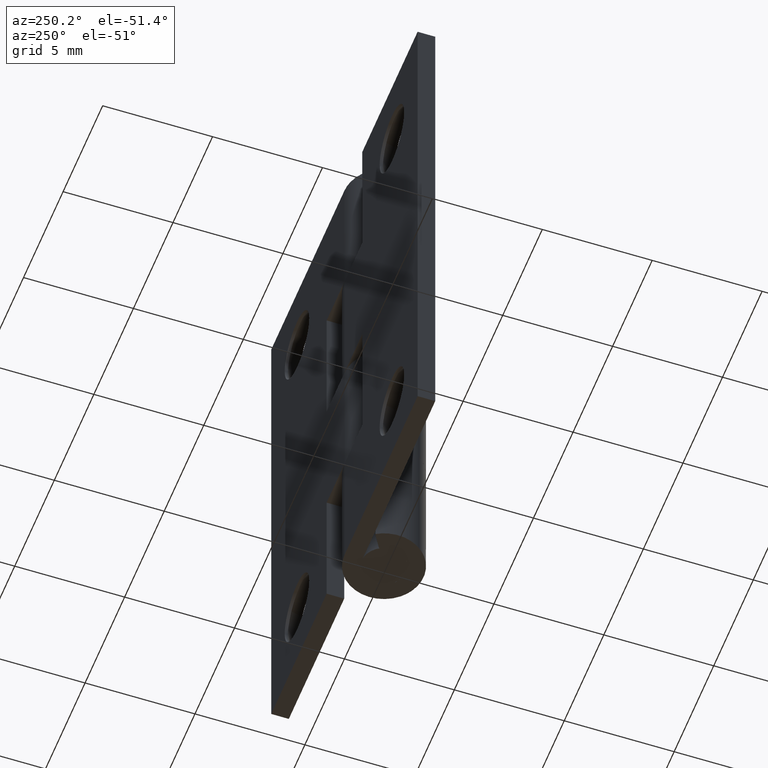
[diagram: clean part render]
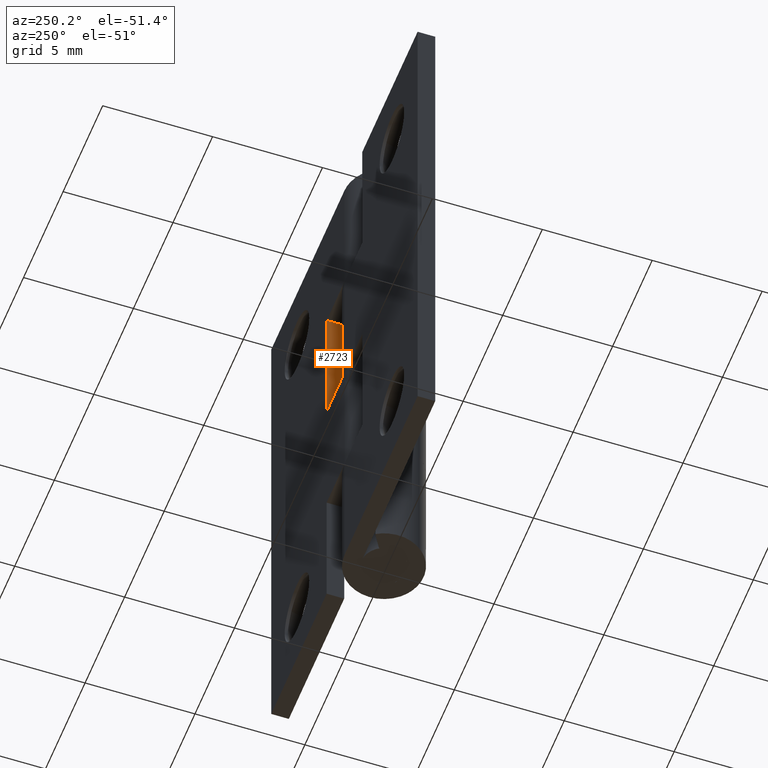
[diagram: same view with one face highlighted and labeled with its STEP entity id]
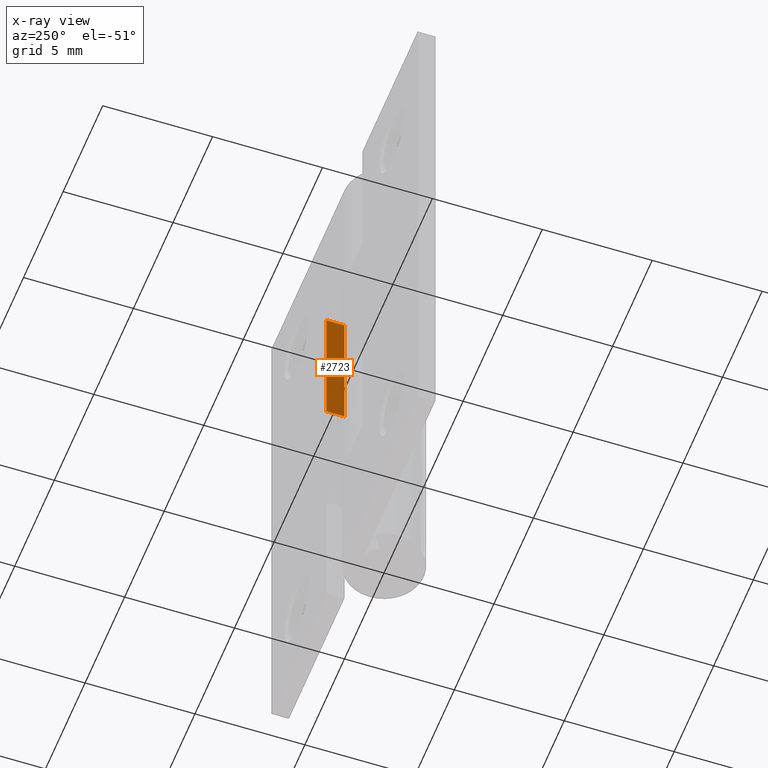
[diagram: x-ray of the same camera — body ghosted, the highlighted face saturated]
A machine part, auxiliary view. The second image highlights one B-rep face of the part: STEP entity #2723.
The next image is the same camera in x-ray: the body ghosted, the highlighted face saturated — about 12% of this face is hidden behind the body in this view.
In plain terms, the highlighted face is a freeform B-spline surface patch.
Its self-contained STEP definition (entity closure, byte-faithful):
#2688=CARTESIAN_POINT('',(2.250000000000000,0.960040051500556,12.187812512113711));
#2689=CARTESIAN_POINT('',(2.250000000000000,0.960040051500556,19.062187655524351));
#2690=CARTESIAN_POINT('',(2.250000000000000,1.839958969957029,12.187812512113711));
#2691=CARTESIAN_POINT('',(2.250000000000000,1.839958969957029,19.062187655524351));
#2692=B_SPLINE_SURFACE_WITH_KNOTS('',1,1,((#2688,#2690),(#2689,#2691)),.UNSPECIFIED.,.F.,.F.,.U.,(2,2),(2,2),(0.0,6.874375143410639),(0.041708334948495,0.958291687403247),.UNSPECIFIED.);
#2693=CARTESIAN_POINT('',(2.250000000000000,1.799998999999940,18.750000000000000));
#2694=VERTEX_POINT('',#2693);
#2695=CARTESIAN_POINT('',(2.250000000000000,1.0,18.750000000000000));
#2696=VERTEX_POINT('',#2695);
#2697=CARTESIAN_POINT('',(2.250000000000000,1.799998999999940,18.750000000000000));
#2698=CARTESIAN_POINT('',(2.250000000000000,1.0,18.750000000000000));
#2699=QUASI_UNIFORM_CURVE('',1,(#2697,#2698),.UNSPECIFIED.,.F.,.U.);
#2700=EDGE_CURVE('',#2694,#2696,#2699,.T.);
#2701=ORIENTED_EDGE('',*,*,#2700,.F.);
#2702=CARTESIAN_POINT('',(2.250000000000000,1.799998999999940,12.500000000000000));
#2703=VERTEX_POINT('',#2702);
#2704=CARTESIAN_POINT('',(2.250000000000000,1.799998999999940,18.750000000000000));
#2705=CARTESIAN_POINT('',(2.250000000000000,1.799998999999940,12.500000000000000));
#2706=QUASI_UNIFORM_CURVE('',1,(#2704,#2705),.UNSPECIFIED.,.F.,.U.);
#2707=EDGE_CURVE('',#2694,#2703,#2706,.T.);
#2708=ORIENTED_EDGE('',*,*,#2707,.T.);
#2709=CARTESIAN_POINT('',(2.250000000000000,1.0,12.500000000000000));
#2710=VERTEX_POINT('',#2709);
#2711=CARTESIAN_POINT('',(2.250000000000000,1.799998999999940,12.500000000000000));
#2712=CARTESIAN_POINT('',(2.250000000000000,1.0,12.500000000000000));
#2713=QUASI_UNIFORM_CURVE('',1,(#2711,#2712),.UNSPECIFIED.,.F.,.U.);
#2714=EDGE_CURVE('',#2703,#2710,#2713,.T.);
#2715=ORIENTED_EDGE('',*,*,#2714,.T.);
#2716=CARTESIAN_POINT('',(2.250000000000000,1.0,18.750000000000000));
#2717=CARTESIAN_POINT('',(2.250000000000000,1.0,12.500000000000000));
#2718=QUASI_UNIFORM_CURVE('',1,(#2716,#2717),.UNSPECIFIED.,.F.,.U.);
#2719=EDGE_CURVE('',#2696,#2710,#2718,.T.);
#2720=ORIENTED_EDGE('',*,*,#2719,.F.);
#2721=EDGE_LOOP('',(#2701,#2708,#2715,#2720));
#2722=FACE_OUTER_BOUND('',#2721,.T.);
#2723=ADVANCED_FACE('',(#2722),#2692,.T.);